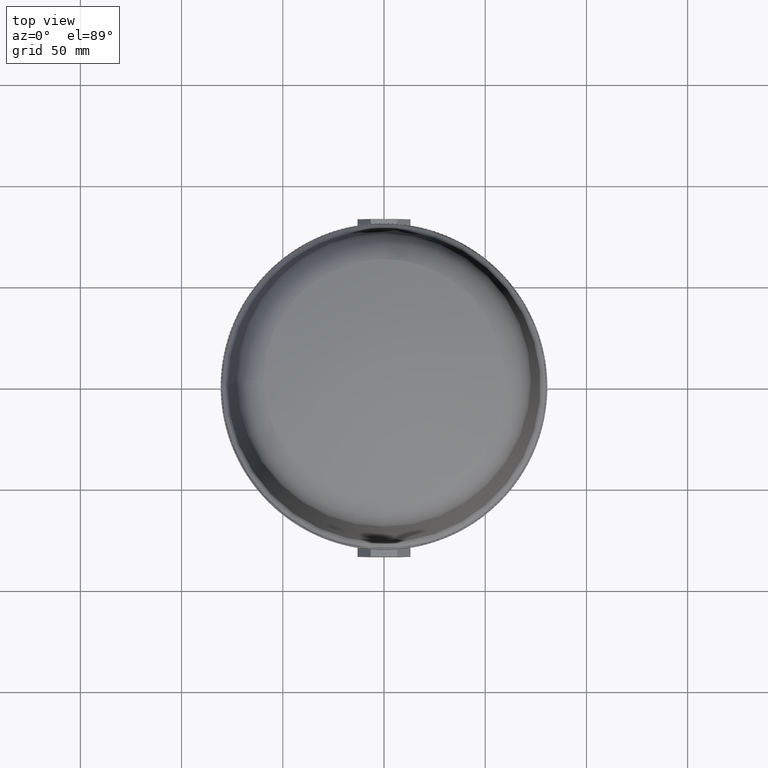
[diagram: clean part render]
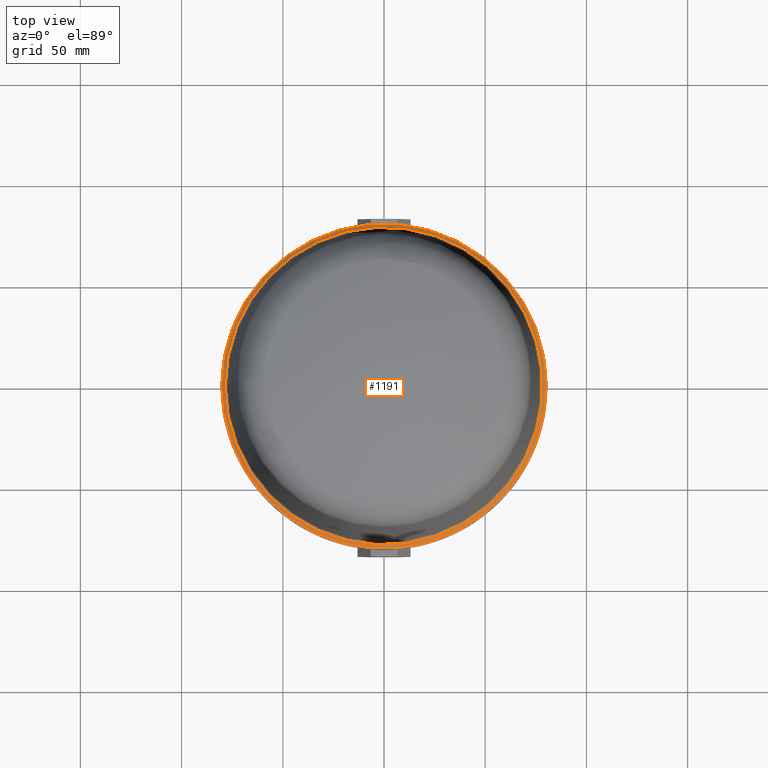
[diagram: same view with one face highlighted and labeled with its STEP entity id]
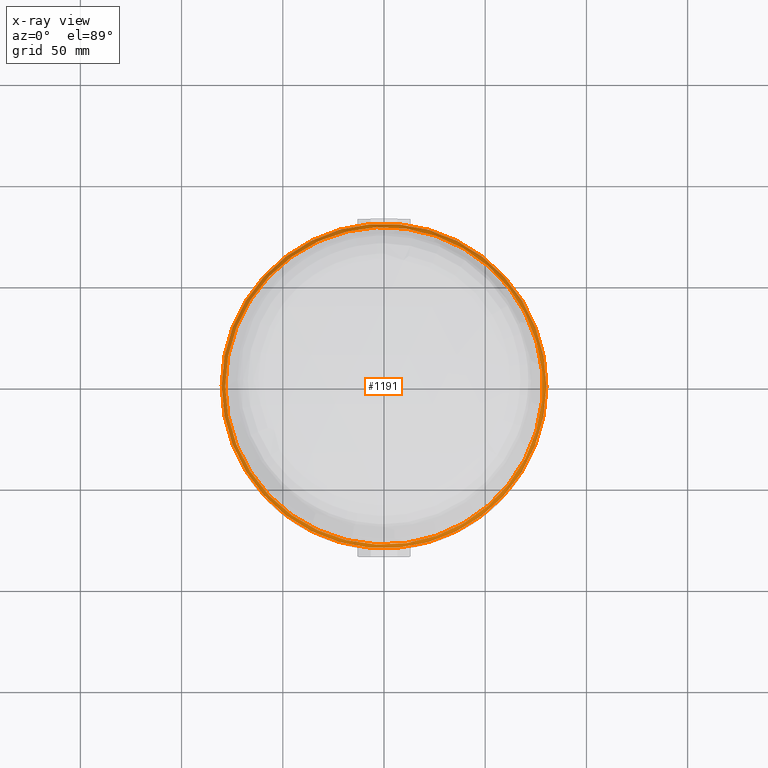
[diagram: x-ray of the same camera — body ghosted, the highlighted face saturated]
A machine part, top view. The second image highlights one B-rep face of the part: STEP entity #1191.
The next image is the same camera in x-ray: the body ghosted, the highlighted face saturated — about 0% of this face is hidden behind the body in this view.
In plain terms, the highlighted conical surface has half-angle 47 deg.
Its self-contained STEP definition (entity closure, byte-faithful):
#788=CONICAL_SURFACE('',#18470,79.3298624927717,47.0000000000001);
#1072=FACE_BOUND('',#4059,.T.);
#1073=FACE_BOUND('',#4060,.T.);
#1191=ADVANCED_FACE('',(#1072,#1073),#788,.T.);
#4059=EDGE_LOOP('',(#8389));
#4060=EDGE_LOOP('',(#8390));
#8389=ORIENTED_EDGE('',*,*,#15132,.T.);
#8390=ORIENTED_EDGE('',*,*,#15131,.F.);
#13530=VERTEX_POINT('',#25420);
#13531=VERTEX_POINT('',#25423);
#15131=EDGE_CURVE('',#13530,#13530,#17673,.T.);
#15132=EDGE_CURVE('',#13531,#13531,#17674,.T.);
#17673=CIRCLE('',#18467,78.4597249855434);
#17674=CIRCLE('',#18469,80.2);
#18467=AXIS2_PLACEMENT_3D('',#25419,#20390,#20391);
#18469=AXIS2_PLACEMENT_3D('',#25422,#20394,#20395);
#18470=AXIS2_PLACEMENT_3D('',#25424,#20396,#20397);
#20390=DIRECTION('',(0.,0.,1.));
#20391=DIRECTION('',(-1.,0.,0.));
#20394=DIRECTION('',(0.,0.,1.));
#20395=DIRECTION('',(-1.,0.,0.));
#20396=DIRECTION('',(1.110223E-016,0.,-1.));
#20397=DIRECTION('',(1.,0.,8.43489060183139E-017));
#25419=CARTESIAN_POINT('',(4.68330984198073E-015,0.,42.0228327050092));
#25420=CARTESIAN_POINT('',(-78.4597249855434,0.,42.0228327050092));
#25422=CARTESIAN_POINT('',(4.86347984198074E-015,0.,40.4));
#25423=CARTESIAN_POINT('',(-80.2,0.,40.4));
#25424=CARTESIAN_POINT('',(4.77338984198073E-015,0.,41.2114163525046));